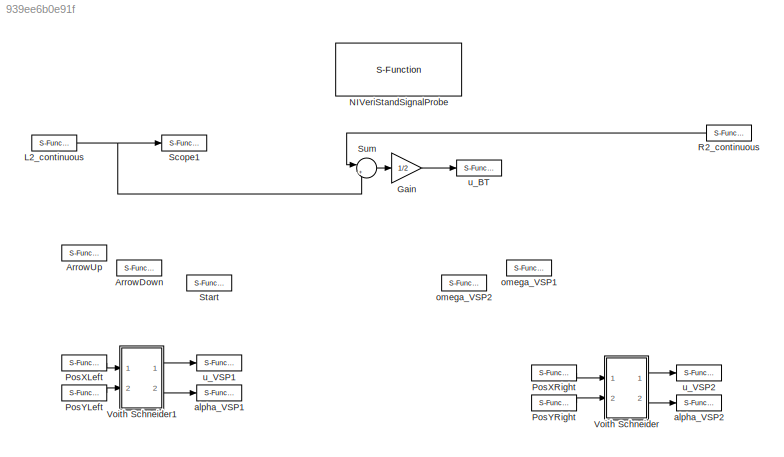
MODEL slx_939ee6b0e91f
KIND model
CONFIG AbsTol = auto
CONFIG FixedStep = 0.01
CONFIG MaxStep = auto
CONFIG MinStep = auto
CONFIG RelTol = 1e-3
CONFIG SampleTimeConstraint = Unconstrained
CONFIG Solver = FixedStepDiscrete
CONFIG SolverMode = Auto
CONFIG SolverName = FixedStepDiscrete
CONFIG StartTime = 0.0
CONFIG StopTime = inf
BLOCK [S-Function] ArrowDown
  CopyFcn = NIVeriStand_MDL_functions('', 'IO_copy');
  DeleteFcn = NIVeriStand_MDL_functions('', 'IO_delete');
  FunctionName = NIVeriStandIO
  MoveFcn = set_param(gcb, 'Mask', 'on');
  Parameters = width dtype portnum stime stype btype
  Ports = [0, 1]
  Priority = 6
BLOCK [S-Function] ArrowUp
  CopyFcn = NIVeriStand_MDL_functions('', 'IO_copy');
  DeleteFcn = NIVeriStand_MDL_functions('', 'IO_delete');
  FunctionName = NIVeriStandIO
  MoveFcn = set_param(gcb, 'Mask', 'on');
  Parameters = width dtype portnum stime stype btype
  Ports = [0, 1]
  Priority = 5
BLOCK [Gain] Gain
  Gain = 1/2
  OutDataTypeStr = Inherit: Inherit via internal rule
  ParamDataTypeStr = Inherit: Inherit via internal rule
  SaturateOnIntegerOverflow = off
BLOCK [S-Function] L2_continuous
  CopyFcn = NIVeriStand_MDL_functions('', 'IO_copy');
  DeleteFcn = NIVeriStand_MDL_functions('', 'IO_delete');
  FunctionName = NIVeriStandIO
  MoveFcn = set_param(gcb, 'Mask', 'on');
  Parameters = width dtype portnum stime stype btype
  Ports = [0, 1]
  Priority = 8
BLOCK [S-Function] NIVeriStandSignalProbe
  FunctionName = NIVeriStandSignalProbe
  Parameters = 1
  Ports = []
BLOCK [S-Function] PosXLeft
  CopyFcn = NIVeriStand_MDL_functions('', 'IO_copy');
  DeleteFcn = NIVeriStand_MDL_functions('', 'IO_delete');
  FunctionName = NIVeriStandIO
  MoveFcn = set_param(gcb, 'Mask', 'on');
  Parameters = width dtype portnum stime stype btype
  Ports = [0, 1]
  Priority = 1
BLOCK [S-Function] PosXRight
  CopyFcn = NIVeriStand_MDL_functions('', 'IO_copy');
  DeleteFcn = NIVeriStand_MDL_functions('', 'IO_delete');
  FunctionName = NIVeriStandIO
  MoveFcn = set_param(gcb, 'Mask', 'on');
  Parameters = width dtype portnum stime stype btype
  Ports = [0, 1]
  Priority = 3
BLOCK [S-Function] PosYLeft
  CopyFcn = NIVeriStand_MDL_functions('', 'IO_copy');
  DeleteFcn = NIVeriStand_MDL_functions('', 'IO_delete');
  FunctionName = NIVeriStandIO
  MoveFcn = set_param(gcb, 'Mask', 'on');
  Parameters = width dtype portnum stime stype btype
  Ports = [0, 1]
  Priority = 2
BLOCK [S-Function] PosYRight
  CopyFcn = NIVeriStand_MDL_functions('', 'IO_copy');
  DeleteFcn = NIVeriStand_MDL_functions('', 'IO_delete');
  FunctionName = NIVeriStandIO
  MoveFcn = set_param(gcb, 'Mask', 'on');
  Parameters = width dtype portnum stime stype btype
  Ports = [0, 1]
  Priority = 7
BLOCK [S-Function] R2_continuous
  CopyFcn = NIVeriStand_MDL_functions('', 'IO_copy');
  DeleteFcn = NIVeriStand_MDL_functions('', 'IO_delete');
  FunctionName = NIVeriStandIO
  MoveFcn = set_param(gcb, 'Mask', 'on');
  Parameters = width dtype portnum stime stype btype
  Ports = [0, 1]
  Priority = 9
BLOCK [S-Function] Scope1
  CopyFcn = NIVeriStand_MDL_functions('', 'IO_copy');
  DeleteFcn = NIVeriStand_MDL_functions('', 'IO_delete');
  FunctionName = NIVeriStandIO
  MoveFcn = set_param(gcb, 'Mask', 'on');
  Parameters = width dtype portnum stime stype btype
  Ports = [1]
  Priority = 8
BLOCK [S-Function] Start
  CopyFcn = NIVeriStand_MDL_functions('', 'IO_copy');
  DeleteFcn = NIVeriStand_MDL_functions('', 'IO_delete');
  FunctionName = NIVeriStandIO
  MoveFcn = set_param(gcb, 'Mask', 'on');
  Parameters = width dtype portnum stime stype btype
  Ports = [0, 1]
  Priority = 4
BLOCK [Sum] Sum
  IconShape = round
  InputSameDT = off
  Inputs = |+-
  OutDataTypeStr = Inherit: Inherit via internal rule
  Ports = [2, 1]
  SaturateOnIntegerOverflow = off
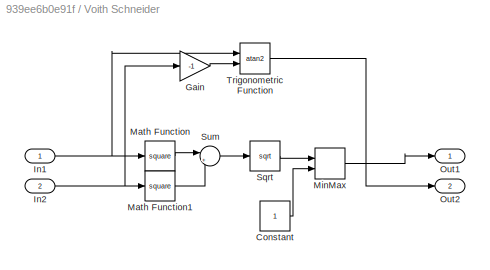
BLOCK [SubSystem] Voith Schneider
  Ports = [2, 2]
  RequestExecContextInheritance = off
BLOCK [Constant] Voith Schneider/Constant
BLOCK [Gain] Voith Schneider/Gain
  Gain = -1
  OutDataTypeStr = Inherit: Inherit via internal rule
  ParamDataTypeStr = Inherit: Inherit via internal rule
  SaturateOnIntegerOverflow = off
BLOCK [Inport] Voith Schneider/In1
  IconDisplay = Port number
BLOCK [Inport] Voith Schneider/In2
  IconDisplay = Port number
  Port = 2
BLOCK [Math] Voith Schneider/Math Function
  Operator = square
  Ports = [1, 1]
BLOCK [Math] Voith Schneider/Math Function1
  Operator = square
  Ports = [1, 1]
BLOCK [MinMax] Voith Schneider/MinMax
  InputSameDT = off
  Inputs = 2
  Ports = [2, 1]
  SaturateOnIntegerOverflow = off
BLOCK [Outport] Voith Schneider/Out1
  IconDisplay = Port number
BLOCK [Outport] Voith Schneider/Out2
  IconDisplay = Port number
  Port = 2
BLOCK [Sqrt] Voith Schneider/Sqrt
BLOCK [Sum] Voith Schneider/Sum
  IconShape = round
  InputSameDT = off
  Inputs = |++
  OutDataTypeStr = Inherit: Inherit via internal rule
  Ports = [2, 1]
  SaturateOnIntegerOverflow = off
BLOCK [Trigonometry] Voith Schneider/Trigonometric Function
  Operator = atan2
  Ports = [2, 1]
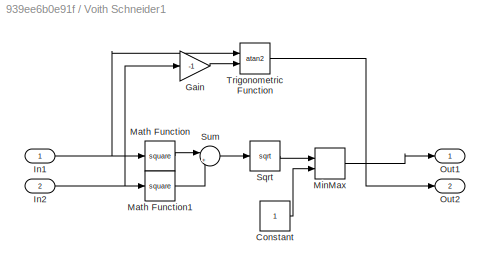
BLOCK [SubSystem] Voith Schneider1
  Ports = [2, 2]
  RequestExecContextInheritance = off
BLOCK [Constant] Voith Schneider1/Constant
BLOCK [Gain] Voith Schneider1/Gain
  Gain = -1
  OutDataTypeStr = Inherit: Inherit via internal rule
  ParamDataTypeStr = Inherit: Inherit via internal rule
  SaturateOnIntegerOverflow = off
BLOCK [Inport] Voith Schneider1/In1
  IconDisplay = Port number
BLOCK [Inport] Voith Schneider1/In2
  IconDisplay = Port number
  Port = 2
BLOCK [Math] Voith Schneider1/Math Function
  Operator = square
  Ports = [1, 1]
BLOCK [Math] Voith Schneider1/Math Function1
  Operator = square
  Ports = [1, 1]
BLOCK [MinMax] Voith Schneider1/MinMax
  InputSameDT = off
  Inputs = 2
  Ports = [2, 1]
  SaturateOnIntegerOverflow = off
BLOCK [Outport] Voith Schneider1/Out1
  IconDisplay = Port number
BLOCK [Outport] Voith Schneider1/Out2
  IconDisplay = Port number
  Port = 2
BLOCK [Sqrt] Voith Schneider1/Sqrt
BLOCK [Sum] Voith Schneider1/Sum
  IconShape = round
  InputSameDT = off
  Inputs = |++
  OutDataTypeStr = Inherit: Inherit via internal rule
  Ports = [2, 1]
  SaturateOnIntegerOverflow = off
BLOCK [Trigonometry] Voith Schneider1/Trigonometric Function
  Operator = atan2
  Ports = [2, 1]
BLOCK [S-Function] alpha_VSP1
  CopyFcn = NIVeriStand_MDL_functions('', 'IO_copy');
  DeleteFcn = NIVeriStand_MDL_functions('', 'IO_delete');
  FunctionName = NIVeriStandIO
  MoveFcn = set_param(gcb, 'Mask', 'on');
  Parameters = width dtype portnum stime stype btype
  Ports = [1]
  Priority = 3
BLOCK [S-Function] alpha_VSP2
  CopyFcn = NIVeriStand_MDL_functions('', 'IO_copy');
  DeleteFcn = NIVeriStand_MDL_functions('', 'IO_delete');
  FunctionName = NIVeriStandIO
  MoveFcn = set_param(gcb, 'Mask', 'on');
  Parameters = width dtype portnum stime stype btype
  Ports = [1]
  Priority = 2
BLOCK [S-Function] omega_VSP1
  CopyFcn = NIVeriStand_MDL_functions('', 'IO_copy');
  DeleteFcn = NIVeriStand_MDL_functions('', 'IO_delete');
  FunctionName = NIVeriStandIO
  MoveFcn = set_param(gcb, 'Mask', 'on');
  Parameters = width dtype portnum stime stype btype
  Ports = [1]
  Priority = 6
BLOCK [S-Function] omega_VSP2
  CopyFcn = NIVeriStand_MDL_functions('', 'IO_copy');
  DeleteFcn = NIVeriStand_MDL_functions('', 'IO_delete');
  FunctionName = NIVeriStandIO
  MoveFcn = set_param(gcb, 'Mask', 'on');
  Parameters = width dtype portnum stime stype btype
  Ports = [1]
  Priority = 7
BLOCK [S-Function] u_BT
  CopyFcn = NIVeriStand_MDL_functions('', 'IO_copy');
  DeleteFcn = NIVeriStand_MDL_functions('', 'IO_delete');
  FunctionName = NIVeriStandIO
  MoveFcn = set_param(gcb, 'Mask', 'on');
  Parameters = width dtype portnum stime stype btype
  Ports = [1]
  Priority = 5
BLOCK [S-Function] u_VSP1
  CopyFcn = NIVeriStand_MDL_functions('', 'IO_copy');
  DeleteFcn = NIVeriStand_MDL_functions('', 'IO_delete');
  FunctionName = NIVeriStandIO
  MoveFcn = set_param(gcb, 'Mask', 'on');
  Parameters = width dtype portnum stime stype btype
  Ports = [1]
  Priority = 1
BLOCK [S-Function] u_VSP2
  CopyFcn = NIVeriStand_MDL_functions('', 'IO_copy');
  DeleteFcn = NIVeriStand_MDL_functions('', 'IO_delete');
  FunctionName = NIVeriStandIO
  MoveFcn = set_param(gcb, 'Mask', 'on');
  Parameters = width dtype portnum stime stype btype
  Ports = [1]
  Priority = 4
LINE Gain:1 -> u_BT:1
NET L2_continuous:1 -> Scope1:1, Sum:2
LINE PosXLeft:1 -> Voith Schneider1:1
LINE PosXRight:1 -> Voith Schneider:1
LINE PosYLeft:1 -> Voith Schneider1:2
LINE PosYRight:1 -> Voith Schneider:2
LINE R2_continuous:1 -> Sum:1
LINE Sum:1 -> Gain:1
LINE Voith Schneider/Constant:1 -> Voith Schneider/MinMax:2
LINE Voith Schneider/Gain:1 -> Voith Schneider/Trigonometric Function:2
NET Voith Schneider/In1:1 -> Voith Schneider/Math Function:1, Voith Schneider/Trigonometric Function:1
NET Voith Schneider/In2:1 -> Voith Schneider/Gain:1, Voith Schneider/Math Function1:1
LINE Voith Schneider/Math Function1:1 -> Voith Schneider/Sum:2
LINE Voith Schneider/Math Function:1 -> Voith Schneider/Sum:1
LINE Voith Schneider/MinMax:1 -> Voith Schneider/Out1:1
LINE Voith Schneider/Sqrt:1 -> Voith Schneider/MinMax:1
LINE Voith Schneider/Sum:1 -> Voith Schneider/Sqrt:1
LINE Voith Schneider/Trigonometric Function:1 -> Voith Schneider/Out2:1
LINE Voith Schneider1/Constant:1 -> Voith Schneider1/MinMax:2
LINE Voith Schneider1/Gain:1 -> Voith Schneider1/Trigonometric Function:2
NET Voith Schneider1/In1:1 -> Voith Schneider1/Math Function:1, Voith Schneider1/Trigonometric Function:1
NET Voith Schneider1/In2:1 -> Voith Schneider1/Gain:1, Voith Schneider1/Math Function1:1
LINE Voith Schneider1/Math Function1:1 -> Voith Schneider1/Sum:2
LINE Voith Schneider1/Math Function:1 -> Voith Schneider1/Sum:1
LINE Voith Schneider1/MinMax:1 -> Voith Schneider1/Out1:1
LINE Voith Schneider1/Sqrt:1 -> Voith Schneider1/MinMax:1
LINE Voith Schneider1/Sum:1 -> Voith Schneider1/Sqrt:1
LINE Voith Schneider1/Trigonometric Function:1 -> Voith Schneider1/Out2:1
LINE Voith Schneider1:1 -> u_VSP1:1
LINE Voith Schneider1:2 -> alpha_VSP1:1
LINE Voith Schneider:1 -> u_VSP2:1
LINE Voith Schneider:2 -> alpha_VSP2:1
note: NET lines group one-source signal fan-out (src -> all destinations, sorted); 1:1 wires keep LINE
